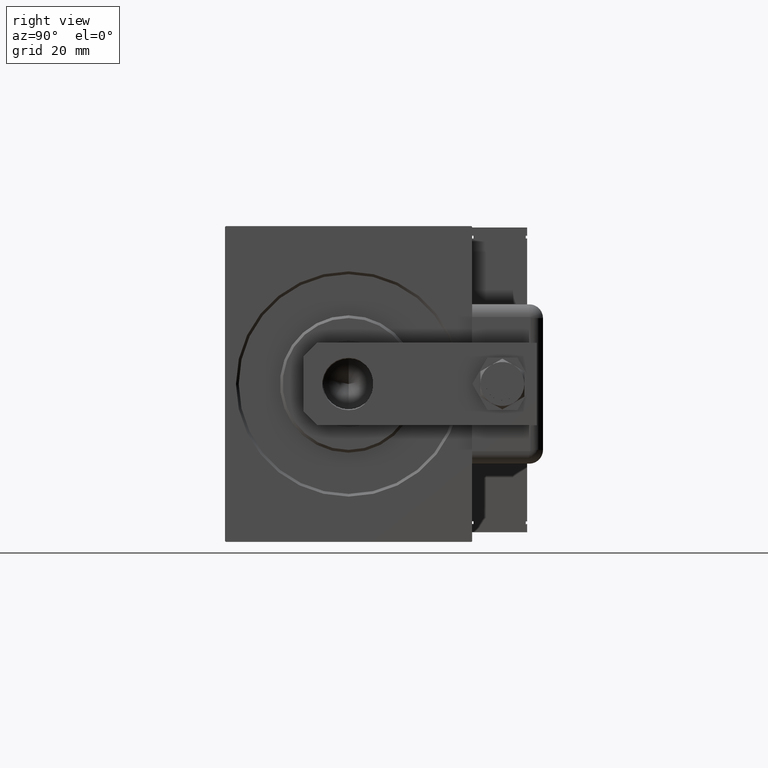
[diagram: clean part render]
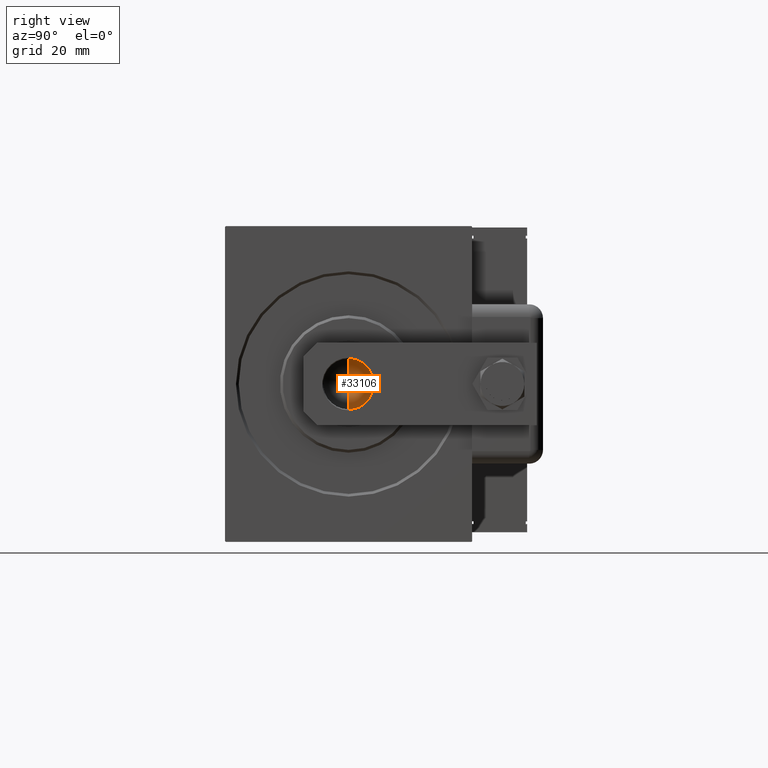
[diagram: same view with one face highlighted and labeled with its STEP entity id]
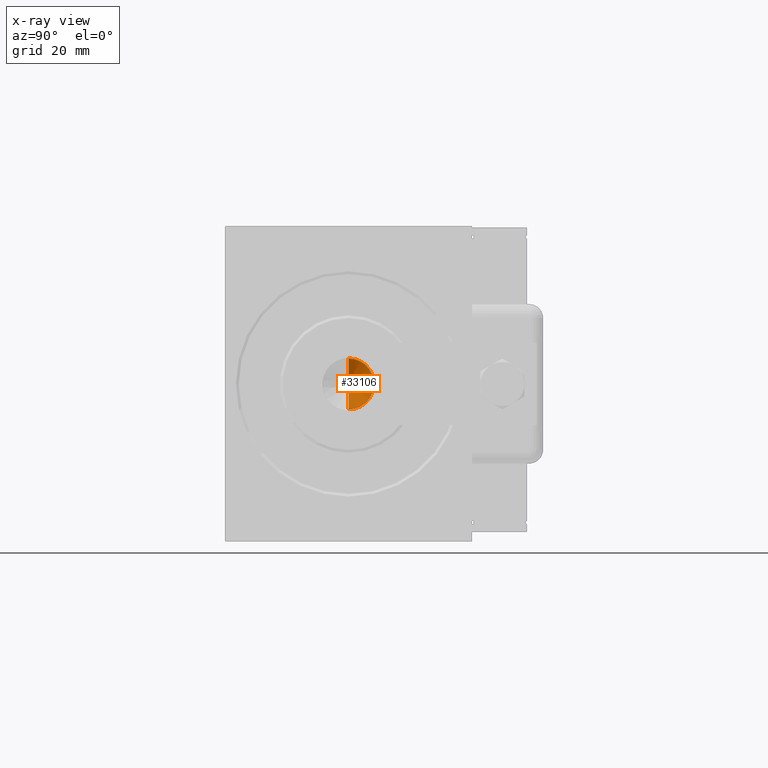
[diagram: x-ray of the same camera — body ghosted, the highlighted face saturated]
A machine part, right view. The second image highlights one B-rep face of the part: STEP entity #33106.
The next image is the same camera in x-ray: the body ghosted, the highlighted face saturated — about 2% of this face is hidden behind the body in this view.
In plain terms, the highlighted conical surface has half-angle 59 deg.
Its self-contained STEP definition (entity closure, byte-faithful):
#1906 = ORIENTED_EDGE ( 'NONE', *, *, #9089, .T. ) ;
#6942 = VECTOR ( 'NONE', #13838, 1000.000000000000000 ) ;
#7869 = AXIS2_PLACEMENT_3D ( 'NONE', #53538, #30868, #49074 ) ;
#9089 = EDGE_CURVE ( 'NONE', #19406, #22345, #50067, .T. ) ;
#10241 = LINE ( 'NONE', #19198, #6942 ) ;
#13838 = DIRECTION ( 'NONE',  ( -0.8571673007021113344, 1.049727191138617463E-16, 0.5150380749100558209 ) ) ;
#15491 = CONICAL_SURFACE ( 'NONE', #7869, 9.249999999999994671, 1.029744258676652535 ) ;
#19198 = CARTESIAN_POINT ( 'NONE',  ( -9.249999999999994671, 1.132798289211300909E-15, 129.0000000000000284 ) ) ;
#19406 = VERTEX_POINT ( 'NONE', #26037 ) ;
#20503 = VERTEX_POINT ( 'NONE', #23922 ) ;
#22345 = VERTEX_POINT ( 'NONE', #56560 ) ;
#23922 = CARTESIAN_POINT ( 'NONE',  ( -9.249999999999994671, 1.132798289211300909E-15, 129.0000000000000284 ) ) ;
#25511 = ORIENTED_EDGE ( 'NONE', *, *, #58572, .F. ) ;
#26037 = CARTESIAN_POINT ( 'NONE',  ( -6.793016015247754405E-15, 0.000000000000000000, 123.4420392739950785 ) ) ;
#30868 = DIRECTION ( 'NONE',  ( -0.000000000000000000, -0.000000000000000000, 1.000000000000000000 ) ) ;
#33106 = ADVANCED_FACE ( 'NONE', ( #35655 ), #15491, .F. ) ;
#34006 = VECTOR ( 'NONE', #46485, 1000.000000000000000 ) ;
#34258 = DIRECTION ( 'NONE',  ( 1.000000000000000000, 0.000000000000000000, 0.000000000000000000 ) ) ;
#34548 = DIRECTION ( 'NONE',  ( -0.000000000000000000, -0.000000000000000000, 1.000000000000000000 ) ) ;
#35049 = ORIENTED_EDGE ( 'NONE', *, *, #47081, .T. ) ;
#35655 = FACE_OUTER_BOUND ( 'NONE', #54865, .T. ) ;
#38429 = CARTESIAN_POINT ( 'NONE',  ( 0.000000000000000000, 0.000000000000000000, 129.0000000000000284 ) ) ;
#43561 = AXIS2_PLACEMENT_3D ( 'NONE', #38429, #34548, #34258 ) ;
#46485 = DIRECTION ( 'NONE',  ( 0.8571673007021113344, 0.000000000000000000, 0.5150380749100558209 ) ) ;
#47081 = EDGE_CURVE ( 'NONE', #22345, #20503, #50237, .T. ) ;
#49074 = DIRECTION ( 'NONE',  ( 1.000000000000000000, 0.000000000000000000, 0.000000000000000000 ) ) ;
#50067 = LINE ( 'NONE', #50361, #34006 ) ;
#50237 = CIRCLE ( 'NONE', #43561, 9.249999999999994671 ) ;
#50361 = CARTESIAN_POINT ( 'NONE',  ( 9.249999999999994671, 0.000000000000000000, 129.0000000000000284 ) ) ;
#53538 = CARTESIAN_POINT ( 'NONE',  ( 0.000000000000000000, 0.000000000000000000, 129.0000000000000284 ) ) ;
#54865 = EDGE_LOOP ( 'NONE', ( #25511, #1906, #35049 ) ) ;
#56560 = CARTESIAN_POINT ( 'NONE',  ( 9.249999999999994671, 0.000000000000000000, 129.0000000000000284 ) ) ;
#58572 = EDGE_CURVE ( 'NONE', #19406, #20503, #10241, .T. ) ;